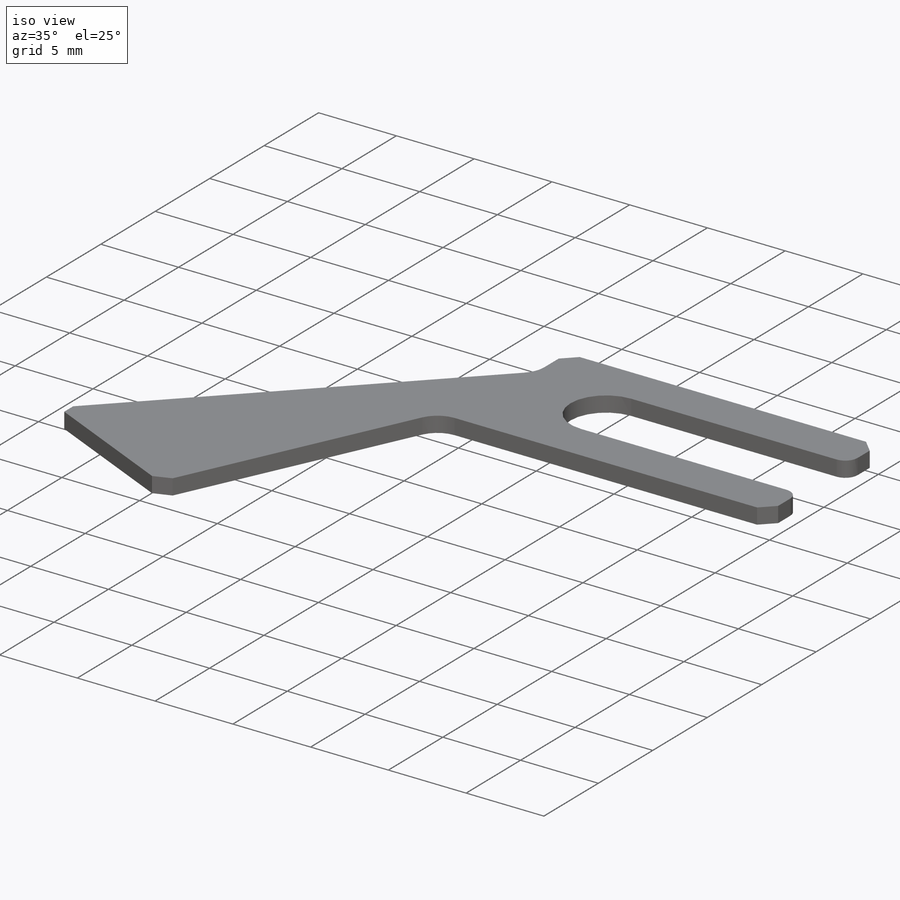
[diagram: iso view]
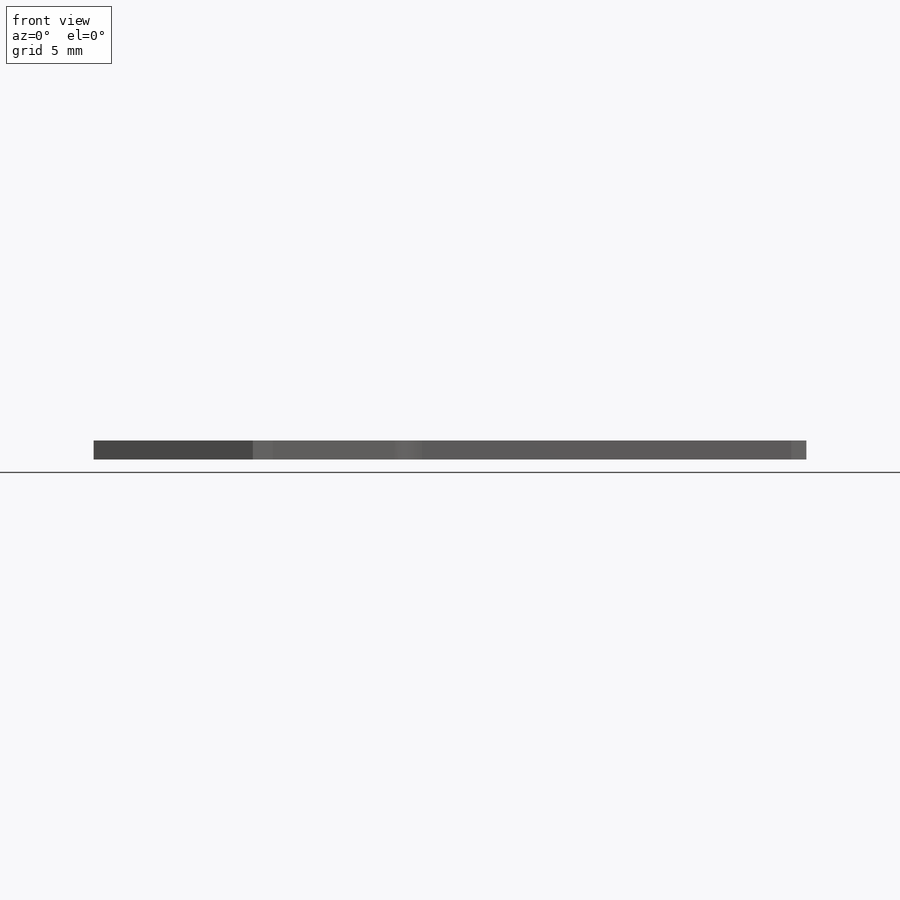
[diagram: front view]
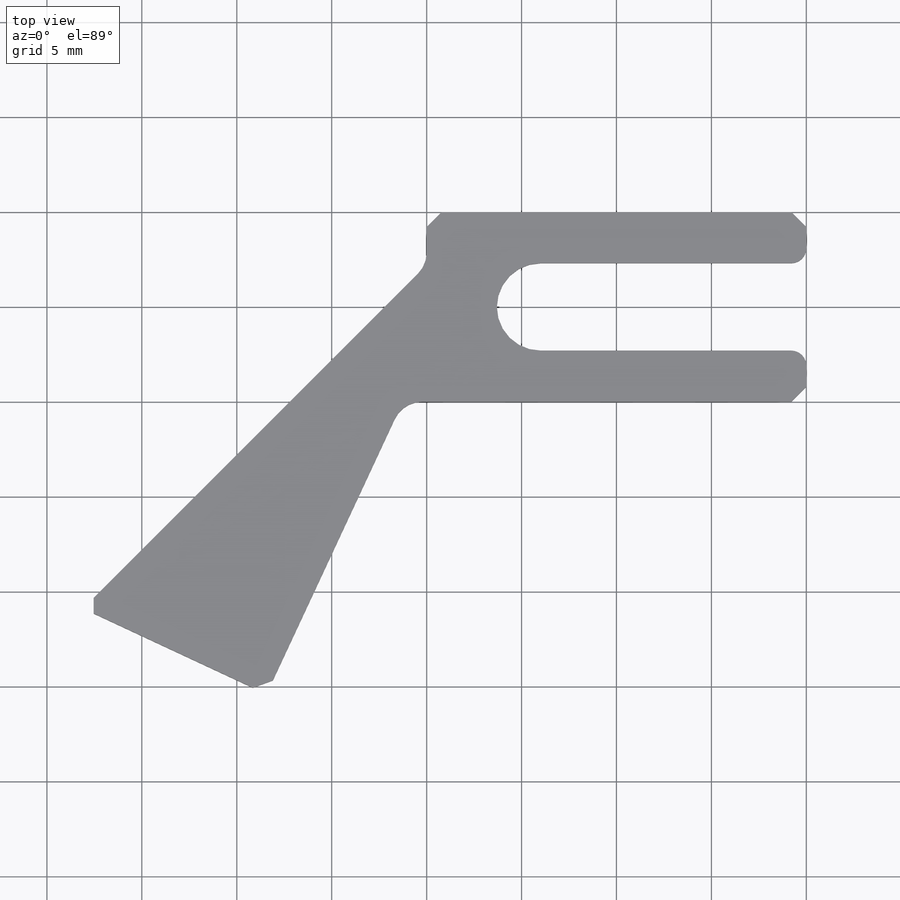
[diagram: top view]
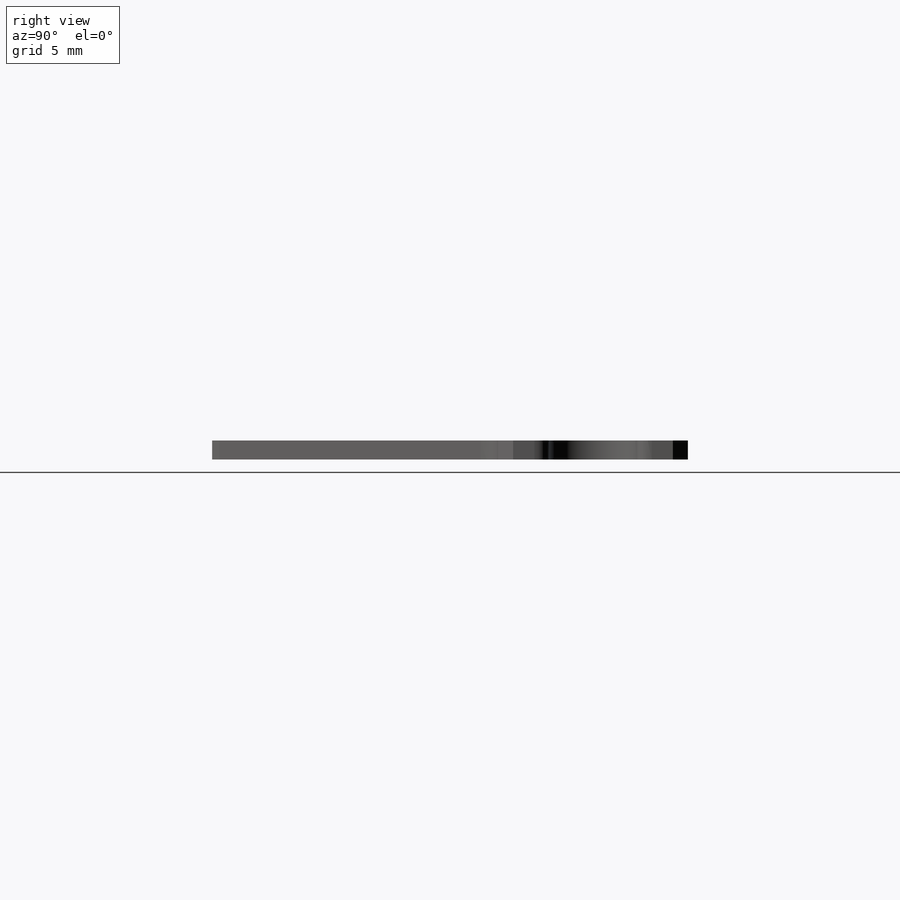
[diagram: right view]
SOLIDWORKS PART (.sldprt)
format: sldprt  version: not decoded by parser v0  size: 250,368 bytes
history: native  units: mm
features: sketch x2, material x1, extrude x1, cut_extrude x1, fillet x1, chamfer x1 + 1 further entry (+13 scaffold rows collapsed)
feature tree (21):
  scaffold x13  (default folders/planes/origin — collapsed)
  material  "6061-T6 Al"
  "Design Table"  ID=392984584
  sketch  "Sketch1"  dims[c1.D6=1.5875mm c1.D1=20.0mm c1.D2=10.0mm c1.D3=10.0mm c1.D4=5.0mm c1.D5=115.0deg c1.D7=~20.24126mm c1.D8=38.1mm c1.D9=20.0deg c1.D10=25.4mm c2.D4=5.0mm c2.D2=10.0mm c2.D5=20.0mm c2.D9=~20.24126mm c3.D9=115.0deg c3.D11=~14.483406mm c4.D11=20.0deg c4.D10=25.4mm]
  extrude  "Boss-Extrude1"  Depth=1mm
  sketch  "Sketch2"  dims[D1=4.6mm D2=2.3mm D3=14.0mm]
  cut_extrude  "Cut-Extrude1"  [1 undecoded]
  fillet  "Fillet1"  Radius=0.79375mm
  chamfer  "Chamfer1"  Distance=0.79375mm Angle=45deg
decode coverage: 5 of 6 modeling features carry decoded parameters; 1 rows unclassified (native names shown)
note: ~ marks probable driven/reference dimensions
note: 1 parameter value undecoded
note: suppression state not decoded; provenance and decode notes live in map.json
